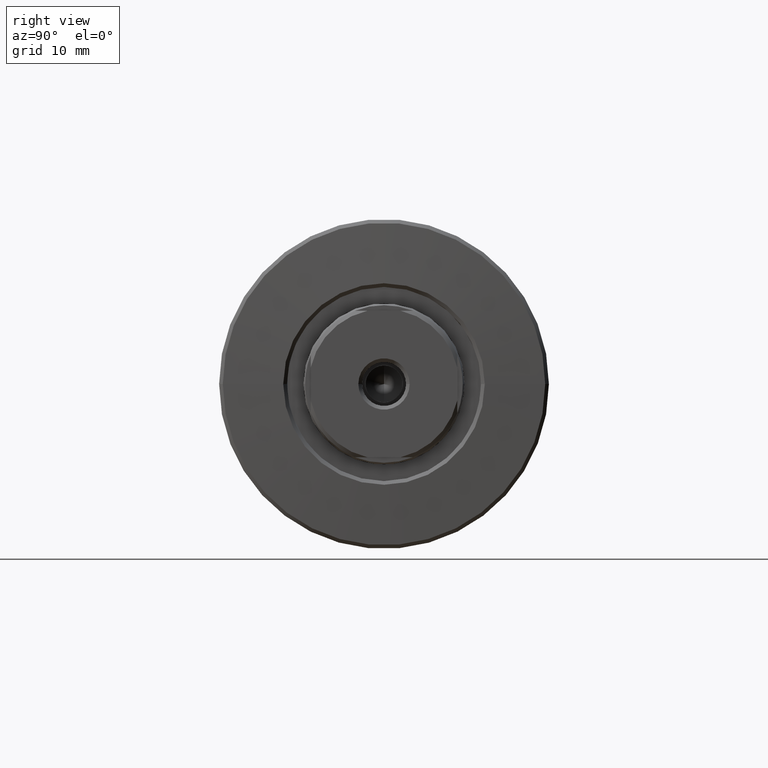
[diagram: clean part render]
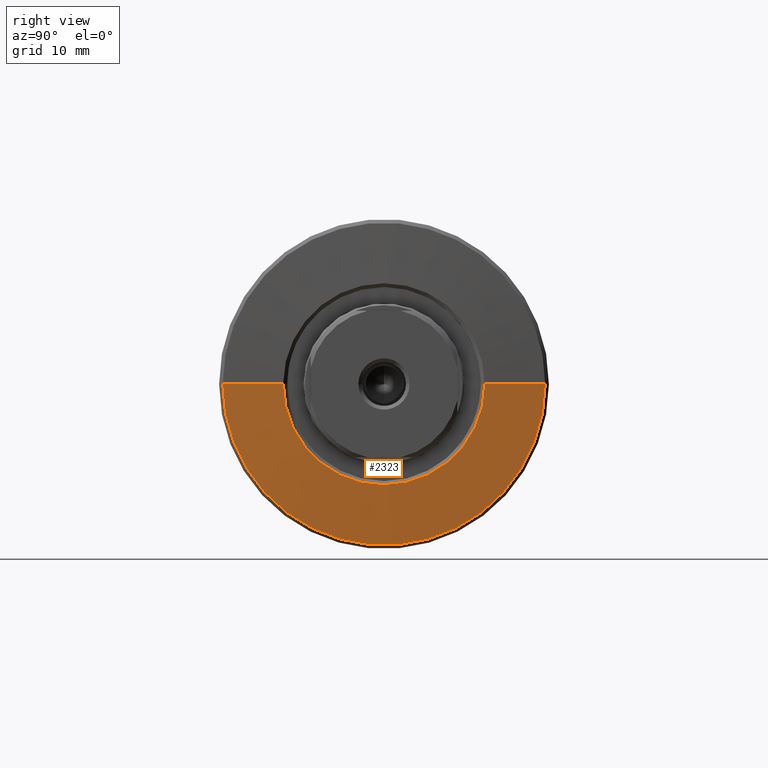
[diagram: same view with one face highlighted and labeled with its STEP entity id]
A machine part, right view. The second image highlights one B-rep face of the part: STEP entity #2323.
In plain terms, the highlighted conical surface has half-angle 87.138 deg.
Its self-contained STEP definition (entity closure, byte-faithful):
#41 = LINE ( 'NONE', #1024, #1015 ) ;
#55 = CARTESIAN_POINT ( 'NONE',  ( -1.100000000000612932, 21.99999999999989342, 2.724839128102853891E-15 ) ) ;
#109 = CARTESIAN_POINT ( 'NONE',  ( -0.6874688084723873382, -13.74937616943899776, 0.000000000000000000 ) ) ;
#116 = DIRECTION ( 'NONE',  ( -0.04993761694392019612, 0.9987523388778434263, 1.223118854947683487E-16 ) ) ;
#146 = AXIS2_PLACEMENT_3D ( 'NONE', #1241, #522, #666 ) ;
#274 = VERTEX_POINT ( 'NONE', #55 ) ;
#300 = ORIENTED_EDGE ( 'NONE', *, *, #1979, .F. ) ;
#309 = VECTOR ( 'NONE', #116, 999.9999999999998863 ) ;
#375 = CIRCLE ( 'NONE', #2354, 21.99999999999993250 ) ;
#487 = ORIENTED_EDGE ( 'NONE', *, *, #719, .F. ) ;
#520 = VERTEX_POINT ( 'NONE', #109 ) ;
#522 = DIRECTION ( 'NONE',  ( -1.000000000000000000, 1.333885945136072597E-15, -0.000000000000000000 ) ) ;
#666 = DIRECTION ( 'NONE',  ( -1.332643495181402961E-15, -1.000000000000000000, 0.000000000000000000 ) ) ;
#679 = CARTESIAN_POINT ( 'NONE',  ( -1.100000000000612932, 21.99999999999989342, 2.694222958124168921E-15 ) ) ;
#719 = EDGE_CURVE ( 'NONE', #274, #1421, #375, .T. ) ;
#731 = DIRECTION ( 'NONE',  ( -1.000000000000000000, 1.333885945136072597E-15, -0.000000000000000000 ) ) ;
#924 = EDGE_CURVE ( 'NONE', #1944, #520, #1203, .T. ) ;
#1015 = VECTOR ( 'NONE', #1173, 1000.000000000000114 ) ;
#1024 = CARTESIAN_POINT ( 'NONE',  ( -1.100000000000671330, -21.99999999999997158, 0.000000000000000000 ) ) ;
#1173 = DIRECTION ( 'NONE',  ( -0.04993761694392286066, -0.9987523388778432043, 0.000000000000000000 ) ) ;
#1203 = CIRCLE ( 'NONE', #146, 13.74937616943895868 ) ;
#1241 = CARTESIAN_POINT ( 'NONE',  ( -0.6874688084723690196, -3.947309180586395012E-14, 0.000000000000000000 ) ) ;
#1270 = CARTESIAN_POINT ( 'NONE',  ( -1.100000000000642242, -3.892282224755411592E-14, 0.000000000000000000 ) ) ;
#1280 = ORIENTED_EDGE ( 'NONE', *, *, #924, .T. ) ;
#1338 = ORIENTED_EDGE ( 'NONE', *, *, #2238, .T. ) ;
#1407 = DIRECTION ( 'NONE',  ( -1.330611757141304966E-15, -1.000000000000000000, 0.000000000000000000 ) ) ;
#1421 = VERTEX_POINT ( 'NONE', #1769 ) ;
#1504 = EDGE_LOOP ( 'NONE', ( #300, #1280, #1338, #487 ) ) ;
#1598 = LINE ( 'NONE', #679, #309 ) ;
#1635 = DIRECTION ( 'NONE',  ( -1.000000000000000000, 1.333885945136072597E-15, -0.000000000000000000 ) ) ;
#1672 = CARTESIAN_POINT ( 'NONE',  ( -1.100000000000642242, -3.892282224755411592E-14, 0.000000000000000000 ) ) ;
#1688 = CONICAL_SURFACE ( 'NONE', #1766, 21.99999999999993250, 1.520837931072924532 ) ;
#1766 = AXIS2_PLACEMENT_3D ( 'NONE', #1270, #1635, #2022 ) ;
#1769 = CARTESIAN_POINT ( 'NONE',  ( -1.100000000000671330, -21.99999999999997158, 0.000000000000000000 ) ) ;
#1944 = VERTEX_POINT ( 'NONE', #2180 ) ;
#1979 = EDGE_CURVE ( 'NONE', #1944, #274, #1598, .T. ) ;
#2022 = DIRECTION ( 'NONE',  ( -1.330611757141304966E-15, -1.000000000000000000, 0.000000000000000000 ) ) ;
#2180 = CARTESIAN_POINT ( 'NONE',  ( -0.6874688084723507009, 13.74937616943891783, 2.189017954870900343E-15 ) ) ;
#2222 = FACE_OUTER_BOUND ( 'NONE', #1504, .T. ) ;
#2238 = EDGE_CURVE ( 'NONE', #520, #1421, #41, .T. ) ;
#2323 = ADVANCED_FACE ( 'NONE', ( #2222 ), #1688, .T. ) ;
#2354 = AXIS2_PLACEMENT_3D ( 'NONE', #1672, #731, #1407 ) ;